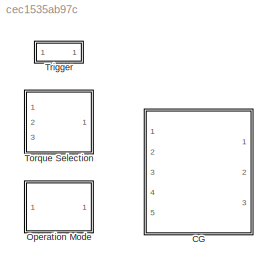
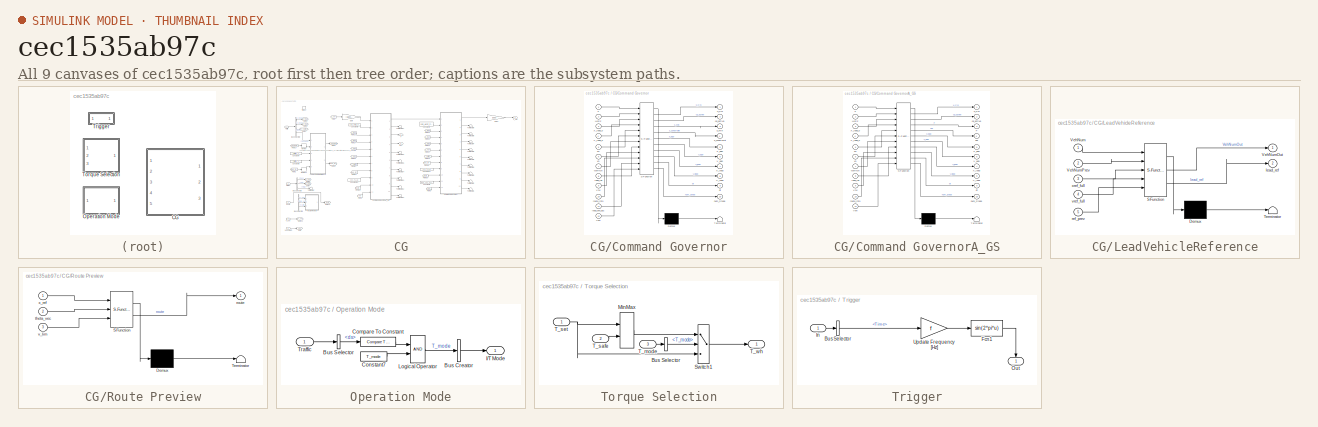
[diagram: thumbnail index - all 9 canvases of the model, root first then tree order]
MODEL slx_cec1535ab97c
KIND library
CONFIG AbsTol = auto
CONFIG EnableMultiTasking = off
CONFIG FixedStep = auto
CONFIG MaxStep = auto
CONFIG MinStep = auto
CONFIG RelTol = 1e-3
CONFIG SampleTimeConstraint = Unconstrained
CONFIG Solver = VariableStepAuto
CONFIG SolverName = VariableStepAuto
CONFIG StartTime = 0.0
CONFIG StopTime = 10.0
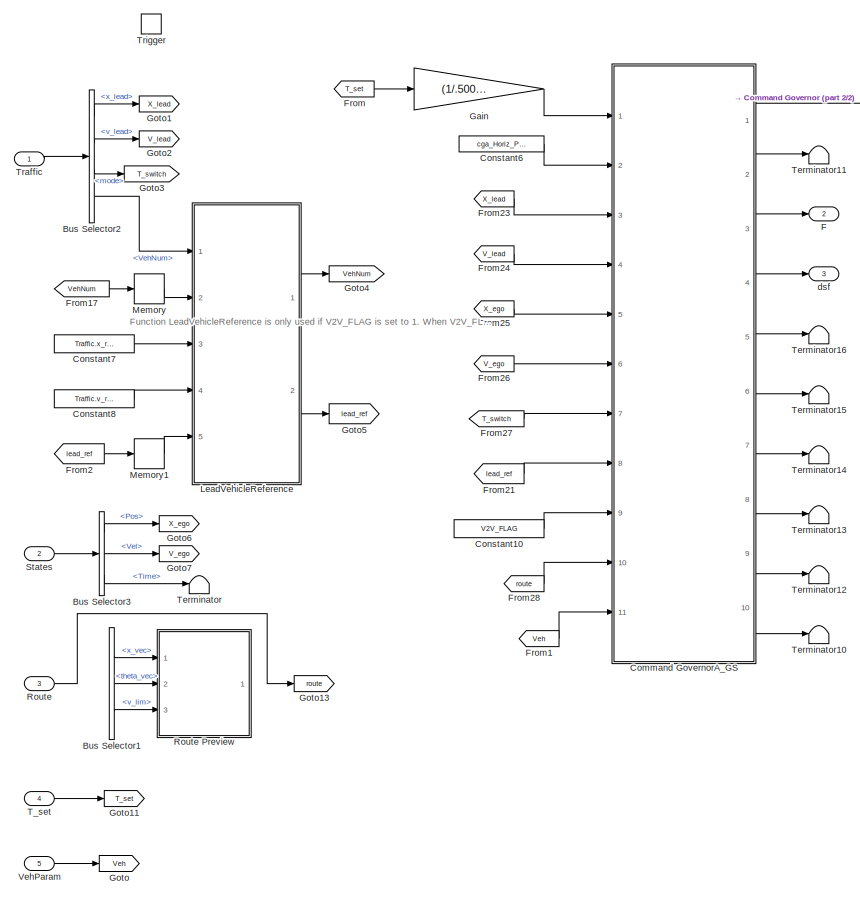
[diagram: CG - part 1/2, left side, full height]
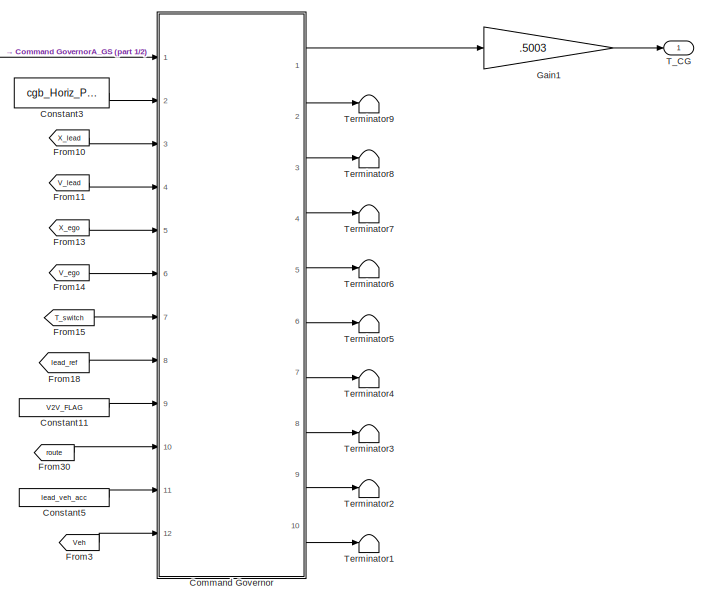
[diagram: CG - part 2/2, middle right region]
BLOCK [SubSystem] CG
  Ports = [5, 3, 0, 1]
  RequestExecContextInheritance = off
  TreatAsAtomicUnit = on
BLOCK [BusSelector] CG/Bus Selector1
  Commented = on
  OutputSignals = x_vec,theta_vec,v_lim
  Ports = [1, 3]
BLOCK [BusSelector] CG/Bus Selector2
  OutputSignals = x_lead,v_lead,mode,VehNum
  Ports = [1, 4]
BLOCK [BusSelector] CG/Bus Selector3
  OutputSignals = Pos,Vel,Time
  Ports = [1, 3]
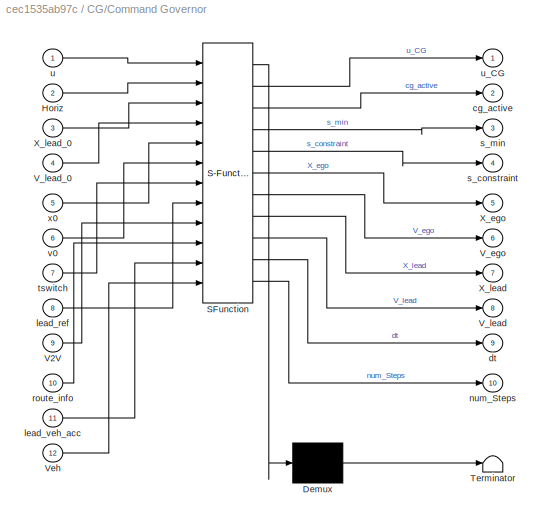
BLOCK [SubSystem] CG/Command Governor
  ErrorFcn = Stateflow.Translate.translate
  PermitHierarchicalResolution = ExplicitOnly
  Ports = [12, 10]
  RequestExecContextInheritance = off
  SFBlockType = MATLAB Function
  TreatAsAtomicUnit = on
BLOCK [Demux] CG/Command Governor/ Demux 
  Outputs = 1
  Ports = [1, 1]
BLOCK [S-Function] CG/Command Governor/ SFunction 
  EnableBusSupport = off
  FunctionName = sf_sfun
  PortCounts = [12 11]
  Ports = [12, 11]
  SFcnIsStateOwnerBlock = off
  SFunctionDeploymentMode = off
  Tag = Stateflow S-Function 5
BLOCK [Terminator] CG/Command Governor/ Terminator 
BLOCK [Inport] CG/Command Governor/Horiz
  Port = 2
BLOCK [Inport] CG/Command Governor/V2V
  Port = 9
BLOCK [Outport] CG/Command Governor/V_ego
  Port = 6
  VectorParamsAs1DForOutWhenUnconnected = off
BLOCK [Outport] CG/Command Governor/V_lead
  Port = 8
  VectorParamsAs1DForOutWhenUnconnected = off
BLOCK [Inport] CG/Command Governor/V_lead_0
  Port = 4
BLOCK [Inport] CG/Command Governor/Veh
  Port = 12
BLOCK [Outport] CG/Command Governor/X_ego
  Port = 5
  VectorParamsAs1DForOutWhenUnconnected = off
BLOCK [Outport] CG/Command Governor/X_lead
  Port = 7
  VectorParamsAs1DForOutWhenUnconnected = off
BLOCK [Inport] CG/Command Governor/X_lead_0
  Port = 3
BLOCK [Outport] CG/Command Governor/cg_active
  Port = 2
  VectorParamsAs1DForOutWhenUnconnected = off
BLOCK [Outport] CG/Command Governor/dt
  Port = 9
  VectorParamsAs1DForOutWhenUnconnected = off
BLOCK [Inport] CG/Command Governor/lead_ref
  Port = 8
BLOCK [Inport] CG/Command Governor/lead_veh_acc
  Port = 11
BLOCK [Outport] CG/Command Governor/num_Steps
  Port = 10
  VectorParamsAs1DForOutWhenUnconnected = off
BLOCK [Inport] CG/Command Governor/route_info
  Port = 10
BLOCK [Outport] CG/Command Governor/s_constraint
  Port = 4
  VectorParamsAs1DForOutWhenUnconnected = off
BLOCK [Outport] CG/Command Governor/s_min
  Port = 3
  VectorParamsAs1DForOutWhenUnconnected = off
BLOCK [Inport] CG/Command Governor/tswitch
  Port = 7
BLOCK [Inport] CG/Command Governor/u
BLOCK [Outport] CG/Command Governor/u_CG
  VectorParamsAs1DForOutWhenUnconnected = off
BLOCK [Inport] CG/Command Governor/v0
  Port = 6
BLOCK [Inport] CG/Command Governor/x0
  Port = 5
BLOCK [SubSystem] CG/Command GovernorA_GS
  ErrorFcn = Stateflow.Translate.translate
  PermitHierarchicalResolution = ExplicitOnly
  Ports = [11, 10]
  RequestExecContextInheritance = off
  SFBlockType = MATLAB Function
  TreatAsAtomicUnit = on
BLOCK [Demux] CG/Command GovernorA_GS/ Demux 
  Outputs = 1
  Ports = [1, 1]
BLOCK [S-Function] CG/Command GovernorA_GS/ SFunction 
  EnableBusSupport = off
  FunctionName = sf_sfun
  PortCounts = [11 11]
  Ports = [11, 11]
  SFcnIsStateOwnerBlock = off
  SFunctionDeploymentMode = off
  Tag = Stateflow S-Function 15
BLOCK [Terminator] CG/Command GovernorA_GS/ Terminator 
BLOCK [Outport] CG/Command GovernorA_GS/F
  Port = 3
  VectorParamsAs1DForOutWhenUnconnected = off
BLOCK [Inport] CG/Command GovernorA_GS/Horiz
  Port = 2
BLOCK [Inport] CG/Command GovernorA_GS/V2V
  Port = 9
BLOCK [Outport] CG/Command GovernorA_GS/V_ego
  Port = 6
  VectorParamsAs1DForOutWhenUnconnected = off
BLOCK [Outport] CG/Command GovernorA_GS/V_lead
  Port = 8
  VectorParamsAs1DForOutWhenUnconnected = off
BLOCK [Inport] CG/Command GovernorA_GS/V_lead_0
  Port = 4
BLOCK [Inport] CG/Command GovernorA_GS/Veh
  Port = 11
BLOCK [Outport] CG/Command GovernorA_GS/X_ego
  Port = 5
  VectorParamsAs1DForOutWhenUnconnected = off
BLOCK [Outport] CG/Command GovernorA_GS/X_lead
  Port = 7
  VectorParamsAs1DForOutWhenUnconnected = off
BLOCK [Inport] CG/Command GovernorA_GS/X_lead_0
  Port = 3
BLOCK [Outport] CG/Command GovernorA_GS/cg_active
  Port = 2
  VectorParamsAs1DForOutWhenUnconnected = off
BLOCK [Outport] CG/Command GovernorA_GS/dsf
  Port = 4
  VectorParamsAs1DForOutWhenUnconnected = off
BLOCK [Outport] CG/Command GovernorA_GS/dt
  Port = 9
  VectorParamsAs1DForOutWhenUnconnected = off
BLOCK [Inport] CG/Command GovernorA_GS/lead_ref
  Port = 8
BLOCK [Outport] CG/Command GovernorA_GS/num_Steps
  Port = 10
  VectorParamsAs1DForOutWhenUnconnected = off
BLOCK [Inport] CG/Command GovernorA_GS/route_info
  Port = 10
BLOCK [Inport] CG/Command GovernorA_GS/tswitch
  Port = 7
BLOCK [Inport] CG/Command GovernorA_GS/u
BLOCK [Outport] CG/Command GovernorA_GS/u_CG
  VectorParamsAs1DForOutWhenUnconnected = off
BLOCK [Inport] CG/Command GovernorA_GS/v0
  Port = 6
BLOCK [Inport] CG/Command GovernorA_GS/x0
  Port = 5
BLOCK [Constant] CG/Constant10
  Value = V2V_FLAG
BLOCK [Constant] CG/Constant11
  Value = V2V_FLAG
BLOCK [Constant] CG/Constant3
  Value = cgb_Horiz_Param
BLOCK [Constant] CG/Constant5
  Value = lead_veh_acc
BLOCK [Constant] CG/Constant6
  Value = cga_Horiz_Param
BLOCK [Constant] CG/Constant7
  Value = Traffic.x_ref
BLOCK [Constant] CG/Constant8
  Value = Traffic.v_ref
BLOCK [Outport] CG/F
  Port = 2
  VectorParamsAs1DForOutWhenUnconnected = off
BLOCK [From] CG/From
  GotoTag = T_set
BLOCK [From] CG/From1
  GotoTag = Veh
BLOCK [From] CG/From10
  GotoTag = X_lead
BLOCK [From] CG/From11
  GotoTag = V_lead
BLOCK [From] CG/From13
  GotoTag = X_ego
BLOCK [From] CG/From14
  GotoTag = V_ego
BLOCK [From] CG/From15
  GotoTag = T_switch
BLOCK [From] CG/From17
  GotoTag = VehNum
BLOCK [From] CG/From18
  GotoTag = lead_ref
BLOCK [From] CG/From2
  GotoTag = lead_ref
BLOCK [From] CG/From21
  GotoTag = lead_ref
BLOCK [From] CG/From23
  GotoTag = X_lead
BLOCK [From] CG/From24
  GotoTag = V_lead
BLOCK [From] CG/From25
  GotoTag = X_ego
BLOCK [From] CG/From26
  GotoTag = V_ego
BLOCK [From] CG/From27
  GotoTag = T_switch
BLOCK [From] CG/From28
  GotoTag = route
BLOCK [From] CG/From3
  GotoTag = Veh
BLOCK [From] CG/From30
  GotoTag = route
BLOCK [Gain] CG/Gain
  Gain = (1/.5003)
BLOCK [Gain] CG/Gain1
  Gain = .5003
BLOCK [Goto] CG/Goto
  GotoTag = Veh
BLOCK [Goto] CG/Goto1
  GotoTag = X_lead
BLOCK [Goto] CG/Goto11
  GotoTag = T_set
BLOCK [Goto] CG/Goto13
  GotoTag = route
BLOCK [Goto] CG/Goto2
  GotoTag = V_lead
BLOCK [Goto] CG/Goto3
  GotoTag = T_switch
BLOCK [Goto] CG/Goto4
  GotoTag = VehNum
BLOCK [Goto] CG/Goto5
  GotoTag = lead_ref
BLOCK [Goto] CG/Goto6
  GotoTag = X_ego
BLOCK [Goto] CG/Goto7
  GotoTag = V_ego
BLOCK [SubSystem] CG/LeadVehicleReference
  ErrorFcn = Stateflow.Translate.translate
  PermitHierarchicalResolution = ExplicitOnly
  Ports = [5, 2]
  RequestExecContextInheritance = off
  SFBlockType = MATLAB Function
  TreatAsAtomicUnit = on
BLOCK [Demux] CG/LeadVehicleReference/ Demux 
  Outputs = 1
  Ports = [1, 1]
BLOCK [S-Function] CG/LeadVehicleReference/ SFunction 
  EnableBusSupport = off
  FunctionName = sf_sfun
  PortCounts = [5 3]
  Ports = [5, 3]
  SFcnIsStateOwnerBlock = off
  SFunctionDeploymentMode = off
  Tag = Stateflow S-Function 25
BLOCK [Terminator] CG/LeadVehicleReference/ Terminator 
BLOCK [Inport] CG/LeadVehicleReference/VehNum
BLOCK [Outport] CG/LeadVehicleReference/VehNumOut
  VectorParamsAs1DForOutWhenUnconnected = off
BLOCK [Inport] CG/LeadVehicleReference/VehNumPrev
  Port = 2
BLOCK [Outport] CG/LeadVehicleReference/lead_ref
  Port = 2
  VectorParamsAs1DForOutWhenUnconnected = off
BLOCK [Inport] CG/LeadVehicleReference/ref_prev
  Port = 5
BLOCK [Inport] CG/LeadVehicleReference/vref_full
  Port = 4
BLOCK [Inport] CG/LeadVehicleReference/xref_full
  Port = 3
BLOCK [Memory] CG/Memory
  InheritSampleTime = on
BLOCK [Memory] CG/Memory1
  InheritSampleTime = on
BLOCK [Inport] CG/Route
  Port = 3
BLOCK [SubSystem] CG/Route Preview
  Commented = on
  ErrorFcn = Stateflow.Translate.translate
  PermitHierarchicalResolution = ExplicitOnly
  Ports = [3, 1]
  RequestExecContextInheritance = off
  SFBlockType = MATLAB Function
  TreatAsAtomicUnit = on
BLOCK [Demux] CG/Route Preview/ Demux 
  Outputs = 1
  Ports = [1, 1]
BLOCK [S-Function] CG/Route Preview/ SFunction 
  EnableBusSupport = off
  FunctionName = sf_sfun
  PortCounts = [3 2]
  Ports = [3, 2]
  SFcnIsStateOwnerBlock = off
  SFunctionDeploymentMode = off
  Tag = Stateflow S-Function 24
BLOCK [Terminator] CG/Route Preview/ Terminator 
BLOCK [Outport] CG/Route Preview/route
  VectorParamsAs1DForOutWhenUnconnected = off
BLOCK [Inport] CG/Route Preview/theta_vec
  Port = 2
BLOCK [Inport] CG/Route Preview/v_lim
  Port = 3
BLOCK [Inport] CG/Route Preview/x_ref
BLOCK [Inport] CG/States
  Port = 2
BLOCK [Outport] CG/T_CG
  VectorParamsAs1DForOutWhenUnconnected = off
BLOCK [Inport] CG/T_set
  Port = 4
BLOCK [Terminator] CG/Terminator
BLOCK [Terminator] CG/Terminator1
BLOCK [Terminator] CG/Terminator10
BLOCK [Terminator] CG/Terminator11
BLOCK [Terminator] CG/Terminator12
BLOCK [Terminator] CG/Terminator13
BLOCK [Terminator] CG/Terminator14
BLOCK [Terminator] CG/Terminator15
BLOCK [Terminator] CG/Terminator16
BLOCK [Terminator] CG/Terminator2
BLOCK [Terminator] CG/Terminator3
BLOCK [Terminator] CG/Terminator4
BLOCK [Terminator] CG/Terminator5
BLOCK [Terminator] CG/Terminator6
BLOCK [Terminator] CG/Terminator7
BLOCK [Terminator] CG/Terminator8
BLOCK [Terminator] CG/Terminator9
BLOCK [Inport] CG/Traffic
BLOCK [TriggerPort] CG/Trigger
  PortDimensions = 1
  Ports = []
  StatesWhenEnabling = held
  VariantControl = Variant
BLOCK [Inport] CG/VehParam
  Port = 5
BLOCK [Outport] CG/dsf
  Port = 3
  VectorParamsAs1DForOutWhenUnconnected = off
BLOCK [SubSystem] Operation Mode
  Ports = [1, 1]
  RequestExecContextInheritance = off
BLOCK [BusCreator] Operation Mode/Bus Creator
  DisplayOption = bar
  InheritFromInputs = on
  Inputs = 1
  Ports = [1, 1]
BLOCK [BusSelector] Operation Mode/Bus Selector
  OutputSignals = ds
  Ports = [1, 1]
BLOCK [Reference] Operation Mode/Compare To Constant  REF=simulink/Logic and Bit
Operations/Compare
To Constant
  Ports = [1, 1]
  SourceBlock = simulink/Logic and Bit\nOperations/Compare\nTo Constant
  SourceProductBaseCode = SL
  SourceType = Compare To Constant
BLOCK [Constant] Operation Mode/Constant7
  Value = T_mode
BLOCK [Outport] Operation Mode/I//T Mode
  VectorParamsAs1DForOutWhenUnconnected = off
BLOCK [Logic] Operation Mode/Logical Operator
  AllPortsSameDT = off
  OutDataTypeStr = boolean
  Ports = [2, 1]
BLOCK [Inport] Operation Mode/Traffic
BLOCK [SubSystem] Torque Selection
  Ports = [3, 1]
  RequestExecContextInheritance = off
BLOCK [BusSelector] Torque Selection/Bus Selector
  OutputSignals = T_mode
  Ports = [1, 1]
BLOCK [MinMax] Torque Selection/MinMax
  Inputs = 2
  Ports = [2, 1]
BLOCK [Switch] Torque Selection/Switch1
  Criteria = u2 > Threshold
  InputSameDT = off
  SaturateOnIntegerOverflow = off
BLOCK [Inport] Torque Selection/T_mode
  Port = 3
BLOCK [Inport] Torque Selection/T_safe
  Port = 2
BLOCK [Inport] Torque Selection/T_set
BLOCK [Outport] Torque Selection/T_wh
  VectorParamsAs1DForOutWhenUnconnected = off
BLOCK [SubSystem] Trigger
  NameLocation = top
  Ports = [1, 1]
  RequestExecContextInheritance = off
BLOCK [BusSelector] Trigger/Bus Selector
  OutputSignals = Time
  Ports = [1, 1]
BLOCK [Fcn] Trigger/Fcn1
  Expr = sin(2*pi*u)
BLOCK [Inport] Trigger/In
BLOCK [Outport] Trigger/Out
  NameLocation = right
  VectorParamsAs1DForOutWhenUnconnected = off
BLOCK [Gain] Trigger/Update Frequency [Hz]
  Gain = f
ANNOTATION CG: Function LeadVehicleReference is only used if V2V_FLAG is set to 1. When V2V_FLAG is 1, the CG leverages the fact that the lead vehicle's velocity is known.
LINE CG/Bus Selector1:1 -> CG/Route Preview:1
LINE CG/Bus Selector1:2 -> CG/Route Preview:2
LINE CG/Bus Selector1:3 -> CG/Route Preview:3
LINE CG/Bus Selector2:1 -> CG/Goto1:1
LINE CG/Bus Selector2:2 -> CG/Goto2:1
LINE CG/Bus Selector2:3 -> CG/Goto3:1
LINE CG/Bus Selector2:4 -> CG/LeadVehicleReference:1
LINE CG/Bus Selector3:1 -> CG/Goto6:1
LINE CG/Bus Selector3:2 -> CG/Goto7:1
LINE CG/Bus Selector3:3 -> CG/Terminator:1
LINE CG/Command Governor:1 -> CG/Gain1:1
LINE CG/Command Governor:10 -> CG/Terminator1:1
LINE CG/Command Governor:2 -> CG/Terminator9:1
LINE CG/Command Governor:3 -> CG/Terminator8:1
LINE CG/Command Governor:4 -> CG/Terminator7:1
LINE CG/Command Governor:5 -> CG/Terminator6:1
LINE CG/Command Governor:6 -> CG/Terminator5:1
LINE CG/Command Governor:7 -> CG/Terminator4:1
LINE CG/Command Governor:8 -> CG/Terminator3:1
LINE CG/Command Governor:9 -> CG/Terminator2:1
LINE CG/Command GovernorA_GS:1 -> CG/Command Governor:1
LINE CG/Command GovernorA_GS:10 -> CG/Terminator10:1
LINE CG/Command GovernorA_GS:2 -> CG/Terminator11:1
LINE CG/Command GovernorA_GS:3 -> CG/F:1
LINE CG/Command GovernorA_GS:4 -> CG/dsf:1
LINE CG/Command GovernorA_GS:5 -> CG/Terminator16:1
LINE CG/Command GovernorA_GS:6 -> CG/Terminator15:1
LINE CG/Command GovernorA_GS:7 -> CG/Terminator14:1
LINE CG/Command GovernorA_GS:8 -> CG/Terminator13:1
LINE CG/Command GovernorA_GS:9 -> CG/Terminator12:1
LINE CG/Constant10:1 -> CG/Command GovernorA_GS:9
LINE CG/Constant11:1 -> CG/Command Governor:9
LINE CG/Constant3:1 -> CG/Command Governor:2
LINE CG/Constant5:1 -> CG/Command Governor:11
LINE CG/Constant6:1 -> CG/Command GovernorA_GS:2
LINE CG/Constant7:1 -> CG/LeadVehicleReference:3
LINE CG/Constant8:1 -> CG/LeadVehicleReference:4
LINE CG/From10:1 -> CG/Command Governor:3
LINE CG/From11:1 -> CG/Command Governor:4
LINE CG/From13:1 -> CG/Command Governor:5
LINE CG/From14:1 -> CG/Command Governor:6
LINE CG/From15:1 -> CG/Command Governor:7
LINE CG/From17:1 -> CG/Memory:1
LINE CG/From18:1 -> CG/Command Governor:8
LINE CG/From1:1 -> CG/Command GovernorA_GS:11
LINE CG/From21:1 -> CG/Command GovernorA_GS:8
LINE CG/From23:1 -> CG/Command GovernorA_GS:3
LINE CG/From24:1 -> CG/Command GovernorA_GS:4
LINE CG/From25:1 -> CG/Command GovernorA_GS:5
LINE CG/From26:1 -> CG/Command GovernorA_GS:6
LINE CG/From27:1 -> CG/Command GovernorA_GS:7
LINE CG/From28:1 -> CG/Command GovernorA_GS:10
LINE CG/From2:1 -> CG/Memory1:1
LINE CG/From30:1 -> CG/Command Governor:10
LINE CG/From3:1 -> CG/Command Governor:12
LINE CG/From:1 -> CG/Gain:1
LINE CG/Gain1:1 -> CG/T_CG:1
LINE CG/Gain:1 -> CG/Command GovernorA_GS:1
LINE CG/LeadVehicleReference:1 -> CG/Goto4:1
LINE CG/LeadVehicleReference:2 -> CG/Goto5:1
LINE CG/Memory1:1 -> CG/LeadVehicleReference:5
LINE CG/Memory:1 -> CG/LeadVehicleReference:2
LINE CG/Route:1 -> CG/Goto13:1
LINE CG/States:1 -> CG/Bus Selector3:1
LINE CG/T_set:1 -> CG/Goto11:1
LINE CG/Traffic:1 -> CG/Bus Selector2:1
LINE CG/VehParam:1 -> CG/Goto:1
LINE Operation Mode/Bus Creator:1 -> Operation Mode/I//T Mode:1
LINE Operation Mode/Bus Selector:1 -> Operation Mode/Compare To Constant:1
LINE Operation Mode/Compare To Constant:1 -> Operation Mode/Logical Operator:1
LINE Operation Mode/Constant7:1 -> Operation Mode/Logical Operator:2
LINE Operation Mode/Logical Operator:1 -> Operation Mode/Bus Creator:1
LINE Operation Mode/Traffic:1 -> Operation Mode/Bus Selector:1
LINE Torque Selection/Bus Selector:1 -> Torque Selection/Switch1:2
LINE Torque Selection/MinMax:1 -> Torque Selection/Switch1:1
LINE Torque Selection/Switch1:1 -> Torque Selection/T_wh:1
LINE Torque Selection/T_mode:1 -> Torque Selection/Bus Selector:1
LINE Torque Selection/T_safe:1 -> Torque Selection/MinMax:2
NET Torque Selection/T_set:1 -> Torque Selection/MinMax:1, Torque Selection/Switch1:3
LINE Trigger/Bus Selector:1 -> Trigger/Update Frequency [Hz]:1
LINE Trigger/Fcn1:1 -> Trigger/Out:1
LINE Trigger/In:1 -> Trigger/Bus Selector:1
LINE Trigger/Update Frequency [Hz]:1 -> Trigger/Fcn1:1
note: NET lines group one-source signal fan-out (src -> all destinations, sorted); 1:1 wires keep LINE
CHART CG/Command Governor states=1 transitions=1
  STATE_LABEL 'eML_blk_kernel()'
  STATE_LABEL 'SCRIPT:\nfunction [u_CG, cg_active, s_min, s_constraint, ...\n    X_ego, V_ego, X_lead, V_lead, dt, num_Steps] ... \n    = Command_Governor(u, Horiz, X_lead_0, ... \n        V_lead_0, x0, v0, tswitch,...\n        lead_ref, V2V, route_info, lead_veh_acc, Veh)\n% s_constraint = NaN(1, 80);\ns_constraint    = NaN(1, length(Horiz));\nX_ego           = zeros(1, length(Horiz));\nV_ego           = zeros(1, length...<+3608ch>'
CHART CG/Command GovernorA_GS states=1 transitions=1
  STATE_LABEL 'eML_blk_kernel()'
  STATE_LABEL 'SCRIPT:\nfunction [u_CG, cg_active, F, dsf, X_ego, V_ego, X_lead, ... \n    V_lead, dt, num_Steps] = Command_GovernorA_GS(u, Horiz, X_lead_0, ... \n        V_lead_0, x0, v0, tswitch, lead_ref, V2V, route_info, Veh)\n\n% Cs_min = 10;\n% X_lead_0        = vehicle(1);   % Lead vehicle position [m]\n% V_lead_0        = vehicle(2);   % Lead vehicle velocity [m/s]\n% x0              = vehicle(3);   % Ego vehicl...<+3608ch>'
CHART CG/Route Preview states=1 transitions=1
  STATE_LABEL 'eML_blk_kernel()'
  STATE_LABEL 'SCRIPT:\nfunction route = fcn(x_ref,theta_vec,v_lim)\n\nroute = [x_ref,theta_vec,v_lim];\n'
CHART CG/LeadVehicleReference states=1 transitions=1
  STATE_LABEL 'eML_blk_kernel()'
  STATE_LABEL 'SCRIPT:\nfunction [VehNumOut, lead_ref] = LeadVehicleReference(VehNum, VehNumPrev, xref_full, vref_full, ...\n    ref_prev)\n\nxref_prev = ref_prev(:, 1);\nvref_prev = ref_prev(:, 2);\ntref_prev = ref_prev(:, 3);\n\n\nVehNumOut = VehNum;\nif VehNum == VehNumPrev\n    if VehNum == 0\n        xref = zeros(length(xref_full(:, 1)), 1);\n        vref = zeros(length(xref_full(:, 1)), 1);\n        tref = zeros(length(...<+526ch>'
CHART  states=0 transitions=0
CHART  states=0 transitions=0
CHART  states=0 transitions=0
CHART  states=0 transitions=0
